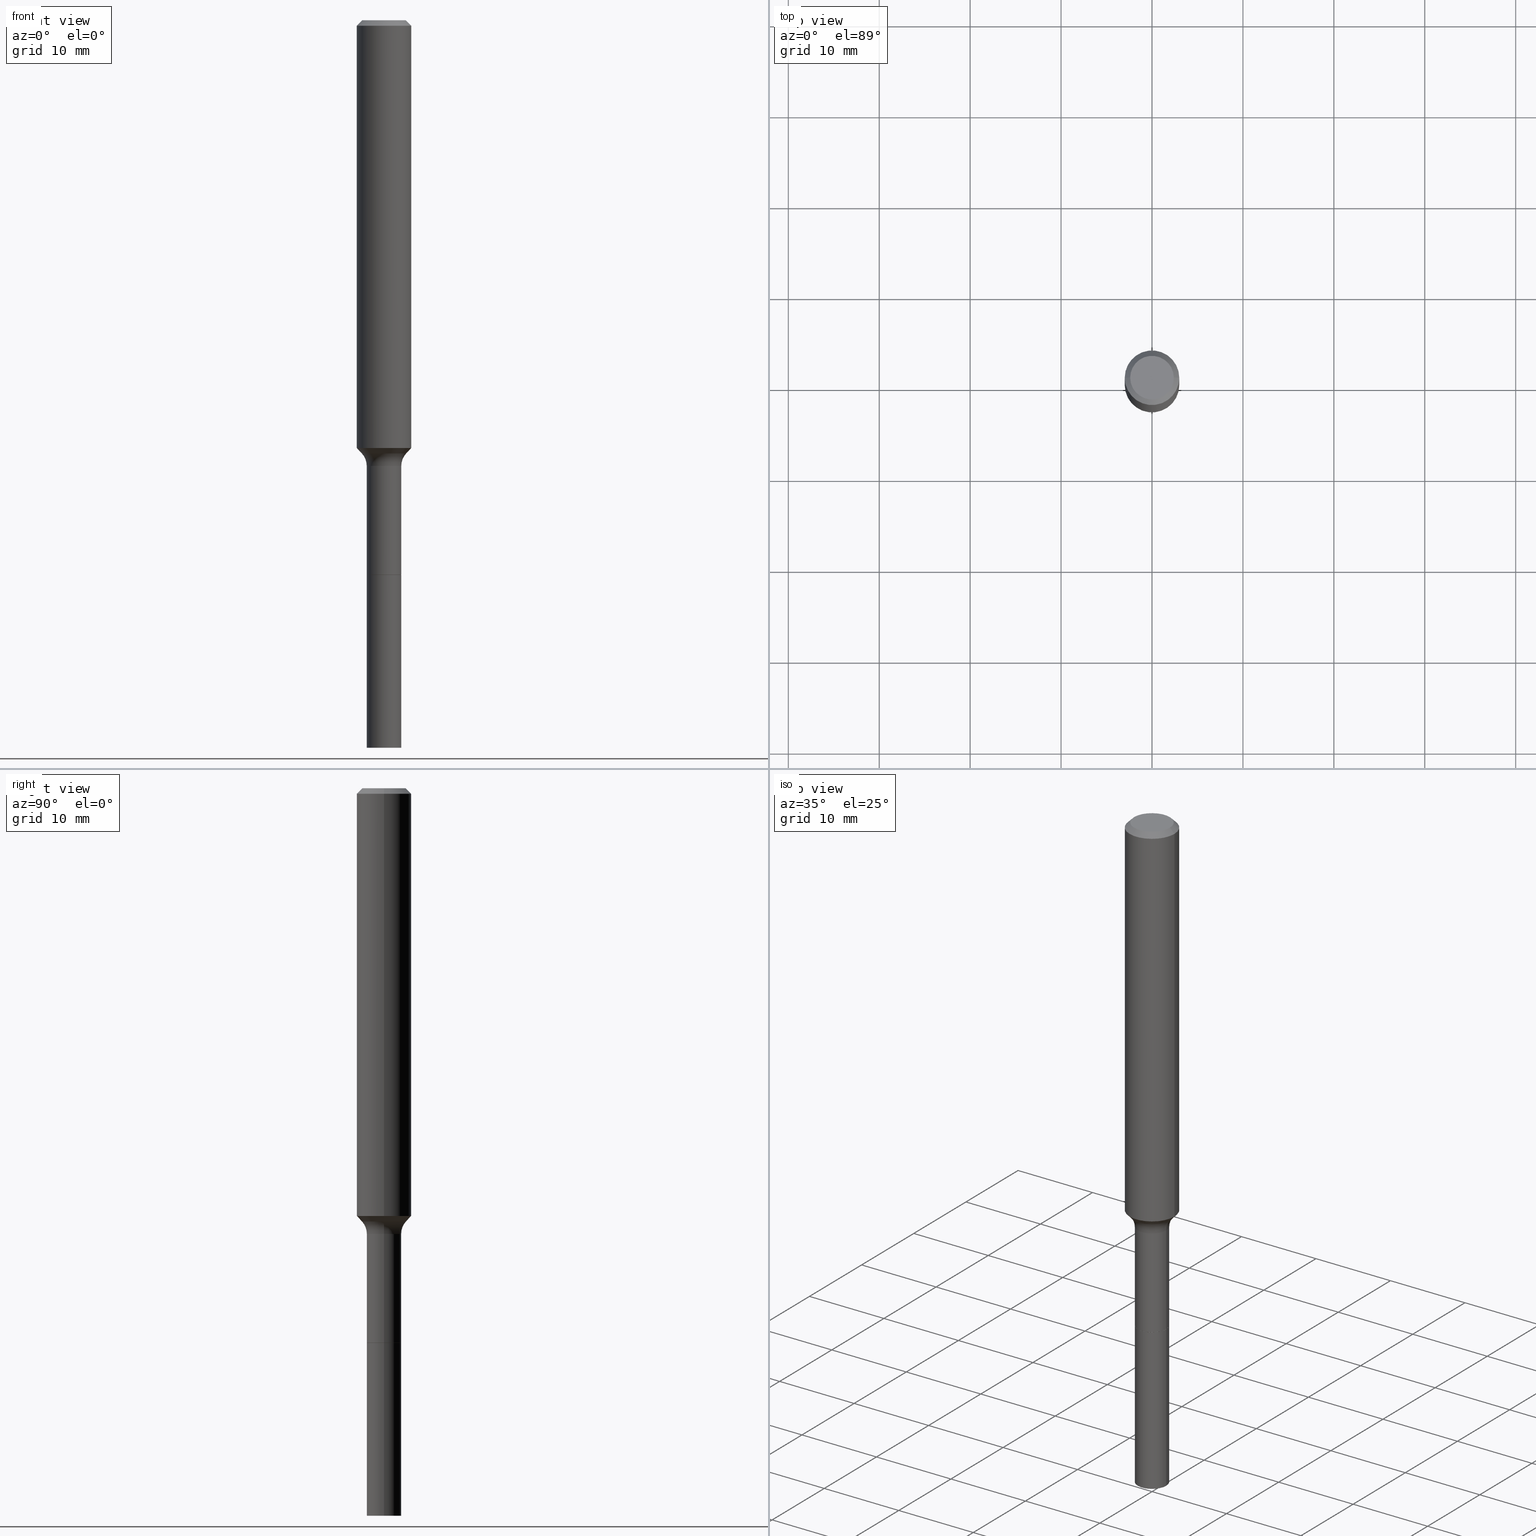
[diagram: canonical four-view strip — front | top / right | iso, engineering-drawing reading convention]
A machine part, canonical four-view strip (front | top / right | iso — engineering-drawing reading convention). The complete STEP part file that produces these views, byte-faithful:
ISO-10303-21;
HEADER;
FILE_DESCRIPTION (( 'STEP AP203' ),
    '1' );
FILE_NAME ('67824.STEP',
    '2025-04-01T15:31:08',
    ( '' ),
    ( '' ),
    'SwSTEP 2.0',
    'SolidWorks 2024',
    '' );
FILE_SCHEMA (( 'CONFIG_CONTROL_DESIGN' ));
ENDSEC;

DATA;
#1 = ORIENTED_EDGE ( 'NONE', *, *, #106, .F. ) ;
#2 = DIRECTION ( 'NONE',  ( 2.438088387897960049E-29, -3.491481338843145188E-15, -1.000000000000000000 ) ) ;
#3 = EDGE_CURVE ( 'NONE', #36, #151, #460, .T. ) ;
#4 = DIRECTION ( 'NONE',  ( 2.445468806185136597E-29, -3.491481338843145583E-15, -1.000000000000000000 ) ) ;
#5 = EDGE_LOOP ( 'NONE', ( #29, #272, #437, #229 ) ) ;
#6 = DATE_TIME_ROLE ( 'creation_date' ) ;
#7 = DIRECTION ( 'NONE',  ( -2.445468806185136597E-29, 3.491481338843145583E-15, 1.000000000000000000 ) ) ;
#8 = DIRECTION ( 'NONE',  ( 1.000000000000000000, -6.982962677686263555E-15, 0.000000000000000000 ) ) ;
#9 = CARTESIAN_POINT ( 'NONE',  ( -0.09629170387046627477, -5.862473920658119900E-15, -1.875040131195000015 ) ) ;
#10 = ORIENTED_EDGE ( 'NONE', *, *, #269, .F. ) ;
#11 = COORDINATED_UNIVERSAL_TIME_OFFSET ( 5, 0, .BEHIND. ) ;
#12 = TOROIDAL_SURFACE ( 'NONE', #212, 0.1547999999999999376, 0.08000000000000009881 ) ;
#13 = ORIENTED_EDGE ( 'NONE', *, *, #228, .F. ) ;
#14 = CYLINDRICAL_SURFACE ( 'NONE', #122, 0.07480000000000010252 ) ;
#15 = APPROVAL ( #412, 'UNSPECIFIED' ) ;
#16 = PERSON_AND_ORGANIZATION ( #234, #45 ) ;
#17 = ADVANCED_FACE ( 'NONE', ( #321 ), #12, .F. ) ;
#18 = DIRECTION ( 'NONE',  ( -1.000000000000000000, 6.982962677686266711E-15, 0.000000000000000000 ) ) ;
#19 = DATE_AND_TIME ( #291, #144 ) ;
#20 = DIRECTION ( 'NONE',  ( 2.445468806185136597E-29, -3.491481338843145583E-15, -1.000000000000000000 ) ) ;
#21 = APPROVAL_ROLE ( '' ) ;
#22 = AXIS2_PLACEMENT_3D ( 'NONE', #215, #371, #413 ) ;
#23 = AXIS2_PLACEMENT_3D ( 'NONE', #254, #495, #332 ) ;
#24 = CARTESIAN_POINT ( 'NONE',  ( -0.1181000000000001077, 8.391509709326790846E-16, -5.809262341591049389E-30 ) ) ;
#25 = DIRECTION ( 'NONE',  ( 7.105427357601001859E-15, 1.000000000000000000, -3.491481338843145583E-15 ) ) ;
#26 = CONICAL_SURFACE ( 'NONE', #99, 0.09629170387046616375, 0.7504915783575668575 ) ;
#27 = AXIS2_PLACEMENT_3D ( 'NONE', #355, #319, #477 ) ;
#28 = EDGE_CURVE ( 'NONE', #264, #383, #273, .T. ) ;
#29 = ORIENTED_EDGE ( 'NONE', *, *, #126, .T. ) ;
#30 = ORIENTED_EDGE ( 'NONE', *, *, #461, .T. ) ;
#31 = FACE_OUTER_BOUND ( 'NONE', #79, .T. ) ;
#32 = VERTEX_POINT ( 'NONE', #275 ) ;
#33 = CIRCLE ( 'NONE', #55, 0.08000000000000009881 ) ;
#34 = APPROVAL_PERSON_ORGANIZATION ( #258, #15, #172 ) ;
#35 = ADVANCED_FACE ( 'NONE', ( #92 ), #237, .T. ) ;
#36 = VERTEX_POINT ( 'NONE', #248 ) ;
#37 = FACE_OUTER_BOUND ( 'NONE', #194, .T. ) ;
#38 = CARTESIAN_POINT ( 'NONE',  ( 5.871815150531132668E-29, -8.383395842696276548E-15, -2.401100000000000456 ) ) ;
#39 = ORIENTED_EDGE ( 'NONE', *, *, #382, .F. ) ;
#40 = CARTESIAN_POINT ( 'NONE',  ( 0.000000000000000000, 0.000000000000000000, 0.000000000000000000 ) ) ;
#41 = ORIENTED_EDGE ( 'NONE', *, *, #103, .T. ) ;
#42 = CARTESIAN_POINT ( 'NONE',  ( -0.07480000000000010252, -7.853655617017142483E-15, -2.401600000000000179 ) ) ;
#43 = AXIS2_PLACEMENT_3D ( 'NONE', #280, #516, #86 ) ;
#44 = DIRECTION ( 'NONE',  ( 1.000000000000000000, -6.982962677686261977E-15, 0.000000000000000000 ) ) ;
#45 = ORGANIZATION ( 'UNSPECIFIED', 'UNSPECIFIED', '' ) ;
#46 = ADVANCED_FACE ( 'NONE', ( #48 ), #211, .F. ) ;
#47 = VERTEX_POINT ( 'NONE', #91 ) ;
#48 = FACE_OUTER_BOUND ( 'NONE', #286, .T. ) ;
#49 =( NAMED_UNIT ( * ) PLANE_ANGLE_UNIT ( ) SI_UNIT ( $, .RADIAN. ) );
#50 = CARTESIAN_POINT ( 'NONE',  ( 5.776197320209328408E-31, -8.246878922347560526E-17, -0.02362000000000014435 ) ) ;
#51 = DIRECTION ( 'NONE',  ( 0.7071067811866199593, -2.468850131083015945E-15, 0.7071067811864750752 ) ) ;
#52 = ORIENTED_EDGE ( 'NONE', *, *, #126, .F. ) ;
#53 = EDGE_CURVE ( 'NONE', #178, #160, #219, .T. ) ;
#54 = DIRECTION ( 'NONE',  ( 2.438088387897960049E-29, -3.491481338843145188E-15, -1.000000000000000000 ) ) ;
#55 = AXIS2_PLACEMENT_3D ( 'NONE', #213, #25, #367 ) ;
#56 = EDGE_CURVE ( 'NONE', #160, #383, #249, .T. ) ;
#57 = DIRECTION ( 'NONE',  ( -2.445468806185136597E-29, 3.491481338843145583E-15, 1.000000000000000000 ) ) ;
#58 = LINE ( 'NONE', #108, #305 ) ;
#59 = CARTESIAN_POINT ( 'NONE',  ( 5.776197320209328408E-31, -8.246878922347560526E-17, -0.02362000000000014435 ) ) ;
#60 = VECTOR ( 'NONE', #297, 39.37007874015748143 ) ;
#61 = CIRCLE ( 'NONE', #27, 0.09629170387046616375 ) ;
#62 = CARTESIAN_POINT ( 'NONE',  ( 5.873037884934224349E-29, -8.385141583365698841E-15, -2.401600000000000179 ) ) ;
#63 = PERSON_AND_ORGANIZATION ( #234, #45 ) ;
#64 = ADVANCED_FACE ( 'NONE', ( #517 ), #78, .F. ) ;
#65 = ORIENTED_EDGE ( 'NONE', *, *, #84, .T. ) ;
#66 = AXIS2_PLACEMENT_3D ( 'NONE', #493, #368, #359 ) ;
#67 = ORIENTED_EDGE ( 'NONE', *, *, #106, .T. ) ;
#68 = CC_DESIGN_DATE_AND_TIME_ASSIGNMENT ( #19, #6, ( #201 ) ) ;
#69 = EDGE_LOOP ( 'NONE', ( #30, #233, #52, #202 ) ) ;
#70 = LINE ( 'NONE', #214, #502 ) ;
#71 = EDGE_CURVE ( 'NONE', #32, #168, #134, .T. ) ;
#72 = FACE_OUTER_BOUND ( 'NONE', #253, .T. ) ;
#73 = ORIENTED_EDGE ( 'NONE', *, *, #376, .F. ) ;
#74 = AXIS2_PLACEMENT_3D ( 'NONE', #333, #54, #223 ) ;
#75 = DIRECTION ( 'NONE',  ( 1.000000000000000000, -6.982962677686266711E-15, 4.876176775795935793E-29 ) ) ;
#76 = VERTEX_POINT ( 'NONE', #236 ) ;
#77 = DIRECTION ( 'NONE',  ( 1.000000000000000000, -6.982962677686268288E-15, 0.000000000000000000 ) ) ;
#78 = PLANE ( 'NONE',  #143 ) ;
#79 = EDGE_LOOP ( 'NONE', ( #506, #198, #278, #39 ) ) ;
#80 = DIRECTION ( 'NONE',  ( 1.000000000000000000, -6.982962677686266711E-15, 4.876176775795935793E-29 ) ) ;
#81 = CARTESIAN_POINT ( 'NONE',  ( 0.1181000000000002187, -7.289701871487256587E-15, -1.851653596806735580 ) ) ;
#82 = CARTESIAN_POINT ( 'NONE',  ( 5.873037884934224349E-29, -8.385141583365698841E-15, -2.401600000000000179 ) ) ;
#83 = VERTEX_POINT ( 'NONE', #393 ) ;
#84 = EDGE_CURVE ( 'NONE', #32, #178, #246, .T. ) ;
#85 = AXIS2_PLACEMENT_3D ( 'NONE', #141, #293, #331 ) ;
#86 = DIRECTION ( 'NONE',  ( 1.000000000000000000, -6.982962677686268288E-15, 0.000000000000000000 ) ) ;
#87 = VECTOR ( 'NONE', #343, 39.37007874015748143 ) ;
#88 = VERTEX_POINT ( 'NONE', #9 ) ;
#89 = ADVANCED_FACE ( 'NONE', ( #400 ), #430, .T. ) ;
#90 = DIRECTION ( 'NONE',  ( -2.445468806185136877E-29, 3.491481338843145188E-15, 1.000000000000000000 ) ) ;
#91 = CARTESIAN_POINT ( 'NONE',  ( -0.1180999999999999966, -2.434590413305311722E-15, -0.02362000000000014435 ) ) ;
#92 = FACE_OUTER_BOUND ( 'NONE', #473, .T. ) ;
#93 = CC_DESIGN_PERSON_AND_ORGANIZATION_ASSIGNMENT ( #16, #370, ( #201 ) ) ;
#94 = PERSON_AND_ORGANIZATION_ROLE ( 'creator' ) ;
#95 = DIRECTION ( 'NONE',  ( -0.7071067811866199593, 7.493145998870616062E-15, 0.7071067811864750752 ) ) ;
#96 = DIRECTION ( 'NONE',  ( -2.445468806185136597E-29, 3.491481338843145583E-15, 1.000000000000000000 ) ) ;
#97 = APPROVAL_DATE_TIME ( #179, #112 ) ;
#98 = DIRECTION ( 'NONE',  ( -2.445468806185136597E-29, 3.491481338843145583E-15, 1.000000000000000000 ) ) ;
#99 = AXIS2_PLACEMENT_3D ( 'NONE', #294, #57, #410 ) ;
#100 = AXIS2_PLACEMENT_3D ( 'NONE', #50, #353, #159 ) ;
#101 = PERSON_AND_ORGANIZATION ( #234, #45 ) ;
#102 = CARTESIAN_POINT ( 'NONE',  ( 5.873037884934224349E-29, -8.385141583365698841E-15, -2.401600000000000179 ) ) ;
#103 = EDGE_CURVE ( 'NONE', #420, #466, #439, .T. ) ;
#104 = APPROVAL_ROLE ( '' ) ;
#105 = DIRECTION ( 'NONE',  ( -2.445468806185136597E-29, 3.491481338843145583E-15, 1.000000000000000000 ) ) ;
#106 = EDGE_CURVE ( 'NONE', #151, #36, #441, .T. ) ;
#107 = DATE_TIME_ROLE ( 'classification_date' ) ;
#108 = CARTESIAN_POINT ( 'NONE',  ( -0.07430000000000000493, -7.857208330695944170E-15, -2.401600000000000179 ) ) ;
#109 = MANIFOLD_SOLID_BREP ( 'Body-Move/Copy2[2]', #265 ) ;
#110 = VECTOR ( 'NONE', #51, 39.37007874015748143 ) ;
#111 = LOCAL_TIME ( 11, 31, 8.000000000000000000, #132 ) ;
#112 = APPROVAL ( #183, 'UNSPECIFIED' ) ;
#113 = PERSON_AND_ORGANIZATION ( #234, #45 ) ;
#114 = ORIENTED_EDGE ( 'NONE', *, *, #182, .T. ) ;
#115 = ORIENTED_EDGE ( 'NONE', *, *, #389, .T. ) ;
#116 = EDGE_LOOP ( 'NONE', ( #10, #119, #200, #380 ) ) ;
#117 = ADVANCED_FACE ( 'NONE', ( #207 ), #453, .T. ) ;
#118 = APPLICATION_CONTEXT ( 'configuration controlled 3d designs of mechanical parts and assemblies' ) ;
#119 = ORIENTED_EDGE ( 'NONE', *, *, #461, .F. ) ;
#120 = DIRECTION ( 'NONE',  ( -2.445468806185136597E-29, 3.491481338843145583E-15, 1.000000000000000000 ) ) ;
#121 = ORIENTED_EDGE ( 'NONE', *, *, #216, .T. ) ;
#122 = AXIS2_PLACEMENT_3D ( 'NONE', #102, #139, #369 ) ;
#123 = AXIS2_PLACEMENT_3D ( 'NONE', #224, #377, #503 ) ;
#124 = CARTESIAN_POINT ( 'NONE',  ( 0.000000000000000000, 0.000000000000000000, 0.000000000000000000 ) ) ;
#125 = DIRECTION ( 'NONE',  ( 1.000000000000000000, -6.982962677686266711E-15, 0.000000000000000000 ) ) ;
#126 = EDGE_CURVE ( 'NONE', #466, #76, #507, .T. ) ;
#127 = CARTESIAN_POINT ( 'NONE',  ( 7.545787641473140628E-46, -1.077338491108201769E-31, -3.085620075131671975E-17 ) ) ;
#128 = EDGE_LOOP ( 'NONE', ( #354, #158, #364, #114 ) ) ;
#129 = CARTESIAN_POINT ( 'NONE',  ( 0.000000000000000000, 0.000000000000000000, 0.000000000000000000 ) ) ;
#130 = CARTESIAN_POINT ( 'NONE',  ( 5.873037884934224349E-29, -8.385141583365698841E-15, -2.401600000000000179 ) ) ;
#131 = ORIENTED_EDGE ( 'NONE', *, *, #187, .T. ) ;
#132 = COORDINATED_UNIVERSAL_TIME_OFFSET ( 5, 0, .BEHIND. ) ;
#133 = DIRECTION ( 'NONE',  ( 1.000000000000000000, -6.982962677686266711E-15, 0.000000000000000000 ) ) ;
#134 = CIRCLE ( 'NONE', #43, 0.07430000000000000493 ) ;
#135 = ADVANCED_FACE ( 'NONE', ( #173 ), #14, .T. ) ;
#136 = ORIENTED_EDGE ( 'NONE', *, *, #53, .T. ) ;
#137 = PERSON_AND_ORGANIZATION_ROLE ( 'design_supplier' ) ;
#138 = EDGE_CURVE ( 'NONE', #329, #83, #334, .T. ) ;
#139 = DIRECTION ( 'NONE',  ( -2.445468806185136597E-29, 3.491481338843145583E-15, 1.000000000000000000 ) ) ;
#140 = EDGE_LOOP ( 'NONE', ( #481, #387, #41, #204 ) ) ;
#141 = CARTESIAN_POINT ( 'NONE',  ( 7.545787641473140628E-46, -1.077338491108201769E-31, -3.085620075131671975E-17 ) ) ;
#142 = PLANE ( 'NONE',  #74 ) ;
#143 = AXIS2_PLACEMENT_3D ( 'NONE', #130, #167, #390 ) ;
#144 = LOCAL_TIME ( 11, 31, 8.000000000000000000, #11 ) ;
#145 =( NAMED_UNIT ( * ) SI_UNIT ( $, .STERADIAN. ) SOLID_ANGLE_UNIT ( ) );
#146 = CARTESIAN_POINT ( 'NONE',  ( 5.871815150531132668E-29, -8.383395842696276548E-15, -2.401100000000000456 ) ) ;
#147 = LINE ( 'NONE', #24, #60 ) ;
#148 = EDGE_CURVE ( 'NONE', #76, #47, #147, .T. ) ;
#149 = CONICAL_SURFACE ( 'NONE', #261, 0.07430000000000000493, 0.7853981633975507526 ) ;
#150 = COORDINATED_UNIVERSAL_TIME_OFFSET ( 5, 0, .BEHIND. ) ;
#151 = VERTEX_POINT ( 'NONE', #252 ) ;
#152 = CARTESIAN_POINT ( 'NONE',  ( 0.07479999999999997762, -5.223256082909326032E-16, 3.647380228295358762E-30 ) ) ;
#153 = ORIENTED_EDGE ( 'NONE', *, *, #71, .F. ) ;
#154 = ADVANCED_FACE ( 'NONE', ( #499 ), #142, .F. ) ;
#155 = EDGE_LOOP ( 'NONE', ( #136, #195, #381, #434 ) ) ;
#156 = AXIS2_PLACEMENT_3D ( 'NONE', #361, #401, #325 ) ;
#157 = CC_DESIGN_PERSON_AND_ORGANIZATION_ASSIGNMENT ( #113, #218, ( #384 ) ) ;
#158 = ORIENTED_EDGE ( 'NONE', *, *, #138, .F. ) ;
#159 = DIRECTION ( 'NONE',  ( 1.000000000000000000, -6.982962677686266711E-15, 0.000000000000000000 ) ) ;
#160 = VERTEX_POINT ( 'NONE', #375 ) ;
#161 = DIRECTION ( 'NONE',  ( 1.000000000000000000, -6.982962677686266711E-15, 4.876176775795935793E-29 ) ) ;
#162 = DIRECTION ( 'NONE',  ( 1.000000000000000000, -6.982962677686266711E-15, 4.876176775795935793E-29 ) ) ;
#163 = CARTESIAN_POINT ( 'NONE',  ( 4.718776608414840041E-29, -6.737162391431733996E-15, -1.929599999999999982 ) ) ;
#164 = AXIS2_PLACEMENT_3D ( 'NONE', #208, #96, #403 ) ;
#165 = AXIS2_PLACEMENT_3D ( 'NONE', #464, #379, #193 ) ;
#166 = DIRECTION ( 'NONE',  ( 1.000000000000000000, -6.982962677686267499E-15, 0.000000000000000000 ) ) ;
#167 = DIRECTION ( 'NONE',  ( -2.438088387897960049E-29, 3.491481338843145188E-15, 1.000000000000000000 ) ) ;
#168 = VERTEX_POINT ( 'NONE', #402 ) ;
#169 = LINE ( 'NONE', #279, #255 ) ;
#170 = DIRECTION ( 'NONE',  ( -2.445468806185136597E-29, 3.491481338843145583E-15, 1.000000000000000000 ) ) ;
#171 = DIRECTION ( 'NONE',  ( 1.000000000000000000, -6.982962677686267499E-15, 4.883557194083112901E-29 ) ) ;
#172 = APPROVAL_ROLE ( '' ) ;
#173 = FACE_OUTER_BOUND ( 'NONE', #511, .T. ) ;
#174 = CARTESIAN_POINT ( 'NONE',  ( 5.873037884934224349E-29, -8.385141583365698841E-15, -2.401600000000000179 ) ) ;
#175 = APPROVAL_DATE_TIME ( #443, #15 ) ;
#176 = AXIS2_PLACEMENT_3D ( 'NONE', #396, #4, #210 ) ;
#177 = AXIS2_PLACEMENT_3D ( 'NONE', #206, #512, #77 ) ;
#178 = VERTEX_POINT ( 'NONE', #459 ) ;
#179 = DATE_AND_TIME ( #404, #205 ) ;
#180 = CARTESIAN_POINT ( 'NONE',  ( 0.07479999999999994986, -7.259487999722666008E-15, -1.929599999999999982 ) ) ;
#181 = DIRECTION ( 'NONE',  ( 1.000000000000000000, -6.982962677686268288E-15, 0.000000000000000000 ) ) ;
#182 = EDGE_CURVE ( 'NONE', #47, #397, #496, .T. ) ;
#183 = APPROVAL_STATUS ( 'not_yet_approved' ) ;
#184 = FACE_OUTER_BOUND ( 'NONE', #465, .T. ) ;
#185 = CIRCLE ( 'NONE', #221, 0.07480000000000019966 ) ;
#186 = CARTESIAN_POINT ( 'NONE',  ( 7.702248551960706711E-29, -1.099676962482037231E-14, -3.149600000000000399 ) ) ;
#187 = EDGE_CURVE ( 'NONE', #487, #36, #449, .T. ) ;
#188 = CARTESIAN_POINT ( 'NONE',  ( -0.07480000000000019966, -9.159469637744476062E-15, -3.149600000000000399 ) ) ;
#189 = ADVANCED_FACE ( 'NONE', ( #456 ), #508, .T. ) ;
#190 = SHAPE_DEFINITION_REPRESENTATION ( #330, #263 ) ;
#191 = AXIS2_PLACEMENT_3D ( 'NONE', #40, #328, #162 ) ;
#192 = CIRCLE ( 'NONE', #475, 0.07479999999999994986 ) ;
#193 = DIRECTION ( 'NONE',  ( 1.000000000000000000, -6.982962677686267499E-15, 4.883557194083112901E-29 ) ) ;
#194 = EDGE_LOOP ( 'NONE', ( #267, #469 ) ) ;
#195 = ORIENTED_EDGE ( 'NONE', *, *, #56, .T. ) ;
#196 = CC_DESIGN_PERSON_AND_ORGANIZATION_ASSIGNMENT ( #326, #137, ( #497 ) ) ;
#197 = CYLINDRICAL_SURFACE ( 'NONE', #306, 0.07479999999999997762 ) ;
#198 = ORIENTED_EDGE ( 'NONE', *, *, #290, .T. ) ;
#199 = AXIS2_PLACEMENT_3D ( 'NONE', #62, #374, #498 ) ;
#200 = ORIENTED_EDGE ( 'NONE', *, *, #372, .T. ) ;
#201 = PRODUCT_DEFINITION ( 'UNKNOWN', '', #497, #318 ) ;
#202 = ORIENTED_EDGE ( 'NONE', *, *, #103, .F. ) ;
#203 = CARTESIAN_POINT ( 'NONE',  ( 0.09629170387046616375, -7.219069001947629893E-15, -1.875040131195000015 ) ) ;
#204 = ORIENTED_EDGE ( 'NONE', *, *, #444, .F. ) ;
#205 = LOCAL_TIME ( 11, 31, 8.000000000000000000, #409 ) ;
#206 = CARTESIAN_POINT ( 'NONE',  ( 5.873037884934224349E-29, -8.385141583365698841E-15, -2.401600000000000179 ) ) ;
#207 = FACE_OUTER_BOUND ( 'NONE', #128, .T. ) ;
#208 = CARTESIAN_POINT ( 'NONE',  ( 5.873037884934224349E-29, -8.385141583365698841E-15, -2.401600000000000179 ) ) ;
#209 = DIRECTION ( 'NONE',  ( -6.982962677686266711E-15, -1.000000000000000000, 3.491481338843145583E-15 ) ) ;
#210 = DIRECTION ( 'NONE',  ( -1.000000000000000000, 6.982962677686266711E-15, 0.000000000000000000 ) ) ;
#211 = PLANE ( 'NONE',  #156 ) ;
#212 = AXIS2_PLACEMENT_3D ( 'NONE', #163, #358, #171 ) ;
#213 = CARTESIAN_POINT ( 'NONE',  ( -0.1547999999999999376, -5.637242236475099352E-15, -1.929599999999999982 ) ) ;
#214 = CARTESIAN_POINT ( 'NONE',  ( 0.1180999999999999966, -8.926936027602933910E-16, -0.02362000000000014435 ) ) ;
#215 = CARTESIAN_POINT ( 'NONE',  ( 5.776197320209328408E-31, -8.246878922347560526E-17, -0.02362000000000014435 ) ) ;
#216 = EDGE_CURVE ( 'NONE', #307, #487, #185, .T. ) ;
#217 = DIRECTION ( 'NONE',  ( 1.000000000000000000, -6.982962677686256455E-15, 0.000000000000000000 ) ) ;
#218 = PERSON_AND_ORGANIZATION_ROLE ( 'classification_officer' ) ;
#219 = CIRCLE ( 'NONE', #327, 0.07480000000000000537 ) ;
#220 = DIRECTION ( 'NONE',  ( -0.7071067811865460184, 2.468850131082241283E-15, -0.7071067811865490160 ) ) ;
#221 = AXIS2_PLACEMENT_3D ( 'NONE', #186, #105, #217 ) ;
#222 = EDGE_CURVE ( 'NONE', #168, #160, #58, .T. ) ;
#223 = DIRECTION ( 'NONE',  ( -1.000000000000000000, 6.982962677686265922E-15, -4.876176775795935793E-29 ) ) ;
#224 = CARTESIAN_POINT ( 'NONE',  ( 4.585352151182658588E-29, -6.546667627649345936E-15, -1.875040131195000015 ) ) ;
#225 = AXIS2_PLACEMENT_3D ( 'NONE', #295, #98, #256 ) ;
#226 = CONICAL_SURFACE ( 'NONE', #123, 0.09629170387046616375, 0.7504915783575668575 ) ;
#227 = ORIENTED_EDGE ( 'NONE', *, *, #500, .T. ) ;
#228 = EDGE_CURVE ( 'NONE', #329, #47, #340, .T. ) ;
#229 = ORIENTED_EDGE ( 'NONE', *, *, #238, .F. ) ;
#230 = AXIS2_PLACEMENT_3D ( 'NONE', #479, #476, #125 ) ;
#231 =( GEOMETRIC_REPRESENTATION_CONTEXT ( 3 ) GLOBAL_UNCERTAINTY_ASSIGNED_CONTEXT ( ( #312 ) ) GLOBAL_UNIT_ASSIGNED_CONTEXT ( ( #323, #49, #145 ) ) REPRESENTATION_CONTEXT ( 'NONE', 'WORKASPACE' ) );
#232 = FACE_OUTER_BOUND ( 'NONE', #447, .T. ) ;
#233 = ORIENTED_EDGE ( 'NONE', *, *, #411, .T. ) ;
#234 = PERSON ( 'UNSPECIFIED', 'UNSPECIFIED', 'UNSPECIFIED', ('UNSPECIFIED'), ('UNSPECIFIED'), ('UNSPECIFIED') ) ;
#235 = FACE_OUTER_BOUND ( 'NONE', #5, .T. ) ;
#236 = CARTESIAN_POINT ( 'NONE',  ( -0.1181000000000002187, -5.625863008319827761E-15, -1.851653596806735580 ) ) ;
#237 = CYLINDRICAL_SURFACE ( 'NONE', #348, 0.07480000000000010252 ) ;
#238 = EDGE_CURVE ( 'NONE', #466, #397, #407, .T. ) ;
#239 = DIRECTION ( 'NONE',  ( -2.445468806185136597E-29, 3.491481338843145583E-15, 1.000000000000000000 ) ) ;
#240 = DIRECTION ( 'NONE',  ( -2.445468806185136597E-29, 3.491481338843145583E-15, 1.000000000000000000 ) ) ;
#241 = ORIENTED_EDGE ( 'NONE', *, *, #424, .T. ) ;
#242 = ADVANCED_FACE ( 'NONE', ( #417 ), #149, .T. ) ;
#243 = CONICAL_SURFACE ( 'NONE', #199, 0.07430000000000000493, 0.7853981633975507526 ) ;
#244 = CIRCLE ( 'NONE', #488, 0.09447999999999998066 ) ;
#245 = CARTESIAN_POINT ( 'NONE',  ( 0.1180999999999999966, -9.071566814582237199E-16, -0.02362000000000014435 ) ) ;
#246 = LINE ( 'NONE', #314, #110 ) ;
#247 = ADVANCED_FACE ( 'NONE', ( #184 ), #243, .T. ) ;
#248 = CARTESIAN_POINT ( 'NONE',  ( 0.07480000000000000537, -8.907467191656631641E-15, -2.401600000000000179 ) ) ;
#249 = LINE ( 'NONE', #324, #316 ) ;
#250 = EDGE_LOOP ( 'NONE', ( #344, #315, #385, #391 ) ) ;
#251 = DIRECTION ( 'NONE',  ( 0.7071067811865460184, -7.319954787623251312E-15, -0.7071067811865490160 ) ) ;
#252 = CARTESIAN_POINT ( 'NONE',  ( -0.07480000000000000537, -9.159469637744477640E-15, -2.401600000000000179 ) ) ;
#253 = EDGE_LOOP ( 'NONE', ( #470, #514, #289, #450 ) ) ;
#254 = CARTESIAN_POINT ( 'NONE',  ( 4.585352151182658588E-29, -6.546667627649345936E-15, -1.875040131195000015 ) ) ;
#255 = VECTOR ( 'NONE', #435, 39.37007874015748143 ) ;
#256 = DIRECTION ( 'NONE',  ( 1.000000000000000000, -6.982962677686256455E-15, 0.000000000000000000 ) ) ;
#257 = DIRECTION ( 'NONE',  ( -2.445468806185136877E-29, 3.491481338843145188E-15, 1.000000000000000000 ) ) ;
#258 = PERSON_AND_ORGANIZATION ( #234, #45 ) ;
#259 = DIRECTION ( 'NONE',  ( -2.445468806185136597E-29, 3.491481338843145583E-15, 1.000000000000000000 ) ) ;
#260 = APPROVAL_STATUS ( 'not_yet_approved' ) ;
#261 = AXIS2_PLACEMENT_3D ( 'NONE', #491, #259, #181 ) ;
#262 = CARTESIAN_POINT ( 'NONE',  ( 0.1181000000000001077, -8.246878922347488542E-16, 5.758764772215005345E-30 ) ) ;
#263 = ADVANCED_BREP_SHAPE_REPRESENTATION ( '67824', ( #484, #109, #66 ), #231 ) ;
#264 = VERTEX_POINT ( 'NONE', #180 ) ;
#265 = CLOSED_SHELL ( 'NONE', ( #242, #189, #432, #311, #336, #89, #492, #17, #309, #408, #117, #46, #64, #247 ) ) ;
#266 = LOCAL_TIME ( 11, 31, 8.000000000000000000, #303 ) ;
#267 = ORIENTED_EDGE ( 'NONE', *, *, #296, .F. ) ;
#268 = ORIENTED_EDGE ( 'NONE', *, *, #290, .F. ) ;
#269 = EDGE_CURVE ( 'NONE', #88, #383, #33, .T. ) ;
#270 = ORIENTED_EDGE ( 'NONE', *, *, #376, .T. ) ;
#271 = DIRECTION ( 'NONE',  ( -2.445468806185136877E-29, 3.491481338843145188E-15, 1.000000000000000000 ) ) ;
#272 = ORIENTED_EDGE ( 'NONE', *, *, #148, .T. ) ;
#273 = CIRCLE ( 'NONE', #230, 0.07479999999999994986 ) ;
#274 = LINE ( 'NONE', #42, #454 ) ;
#275 = CARTESIAN_POINT ( 'NONE',  ( 0.07430000000000000493, -8.903975710317788634E-15, -2.401600000000000179 ) ) ;
#276 = DIRECTION ( 'NONE',  ( -1.000000000000000000, 6.982962677686265922E-15, -4.876176775795935793E-29 ) ) ;
#277 = DIRECTION ( 'NONE',  ( 1.000000000000000000, -6.982962677686274599E-15, 0.000000000000000000 ) ) ;
#278 = ORIENTED_EDGE ( 'NONE', *, *, #339, .T. ) ;
#279 = CARTESIAN_POINT ( 'NONE',  ( -0.09629170387046616375, -5.862473920658121477E-15, -1.875040131195000015 ) ) ;
#280 = CARTESIAN_POINT ( 'NONE',  ( 5.873037884934224349E-29, -8.385141583365698841E-15, -2.401600000000000179 ) ) ;
#281 = ORIENTED_EDGE ( 'NONE', *, *, #3, .T. ) ;
#282 = CALENDAR_DATE ( 2025, 1, 4 ) ;
#283 = CIRCLE ( 'NONE', #100, 0.1180999999999999966 ) ;
#284 = AXIS2_PLACEMENT_3D ( 'NONE', #388, #2, #276 ) ;
#285 = CARTESIAN_POINT ( 'NONE',  ( -0.07479999999999994986, -7.028793150715450098E-15, -1.929599999999999982 ) ) ;
#286 = EDGE_LOOP ( 'NONE', ( #505, #504 ) ) ;
#287 = SECURITY_CLASSIFICATION_LEVEL ( 'unclassified' ) ;
#288 = DIRECTION ( 'NONE',  ( -2.445468806185136877E-29, 3.491481338843145188E-15, 1.000000000000000000 ) ) ;
#289 = ORIENTED_EDGE ( 'NONE', *, *, #382, .T. ) ;
#290 = EDGE_CURVE ( 'NONE', #160, #178, #415, .T. ) ;
#291 = CALENDAR_DATE ( 2025, 1, 4 ) ;
#292 = CARTESIAN_POINT ( 'NONE',  ( 0.000000000000000000, 0.000000000000000000, 0.000000000000000000 ) ) ;
#293 = DIRECTION ( 'NONE',  ( -2.445468806185136597E-29, 3.491481338843145583E-15, 1.000000000000000000 ) ) ;
#294 = CARTESIAN_POINT ( 'NONE',  ( 4.585352151182658588E-29, -6.546667627649345936E-15, -1.875040131195000015 ) ) ;
#295 = CARTESIAN_POINT ( 'NONE',  ( 7.702248551960706711E-29, -1.099676962482037231E-14, -3.149600000000000399 ) ) ;
#296 = EDGE_CURVE ( 'NONE', #487, #307, #474, .T. ) ;
#297 = DIRECTION ( 'NONE',  ( -2.445468806185136877E-29, 3.491481338843145188E-15, 1.000000000000000000 ) ) ;
#298 = AXIS2_PLACEMENT_3D ( 'NONE', #485, #170, #360 ) ;
#299 = CIRCLE ( 'NONE', #442, 0.1181000000000002187 ) ;
#300 = EDGE_LOOP ( 'NONE', ( #153, #423 ) ) ;
#301 = CC_DESIGN_PERSON_AND_ORGANIZATION_ASSIGNMENT ( #482, #489, ( #490 ) ) ;
#302 = CARTESIAN_POINT ( 'NONE',  ( 0.1547999999999999376, -7.818125013937567660E-15, -1.929599999999999982 ) ) ;
#303 = COORDINATED_UNIVERSAL_TIME_OFFSET ( 5, 0, .BEHIND. ) ;
#304 = EDGE_LOOP ( 'NONE', ( #425, #227, #241, #13 ) ) ;
#305 = VECTOR ( 'NONE', #95, 39.37007874015748143 ) ;
#306 = AXIS2_PLACEMENT_3D ( 'NONE', #292, #7, #80 ) ;
#307 = VERTEX_POINT ( 'NONE', #188 ) ;
#308 = FACE_OUTER_BOUND ( 'NONE', #69, .T. ) ;
#309 = ADVANCED_FACE ( 'NONE', ( #341 ), #26, .T. ) ;
#310 = ORIENTED_EDGE ( 'NONE', *, *, #182, .F. ) ;
#311 = ADVANCED_FACE ( 'NONE', ( #308 ), #226, .T. ) ;
#312 = UNCERTAINTY_MEASURE_WITH_UNIT (LENGTH_MEASURE( 1.000000000000000082E-05 ), #323, 'distance_accuracy_value', 'NONE');
#313 = ORIENTED_EDGE ( 'NONE', *, *, #238, .T. ) ;
#314 = CARTESIAN_POINT ( 'NONE',  ( 0.07430000000000000493, -8.903975710317788634E-15, -2.401600000000000179 ) ) ;
#315 = ORIENTED_EDGE ( 'NONE', *, *, #222, .T. ) ;
#316 = VECTOR ( 'NONE', #271, 39.37007874015748143 ) ;
#317 = CIRCLE ( 'NONE', #406, 0.08000000000000009881 ) ;
#318 = DESIGN_CONTEXT ( 'detailed design', #436, 'design' ) ;
#319 = DIRECTION ( 'NONE',  ( -2.445468806185136597E-29, 3.491481338843145583E-15, 1.000000000000000000 ) ) ;
#320 = DIRECTION ( 'NONE',  ( 0.6819983600625022513, -2.208861293262514063E-15, 0.7313537016191670181 ) ) ;
#321 = FACE_OUTER_BOUND ( 'NONE', #116, .T. ) ;
#322 = DIRECTION ( 'NONE',  ( -2.445468806185136597E-29, 3.491481338843145583E-15, 1.000000000000000000 ) ) ;
#323 =( CONVERSION_BASED_UNIT ( 'INCH', #448 ) LENGTH_UNIT ( ) NAMED_UNIT ( #363 ) );
#324 = CARTESIAN_POINT ( 'NONE',  ( -0.07479999999999997762, 5.314859663485547800E-16, -3.679363447510668680E-30 ) ) ;
#325 = DIRECTION ( 'NONE',  ( -1.000000000000000000, 6.982962677686265922E-15, -4.876176775795935793E-29 ) ) ;
#326 = PERSON_AND_ORGANIZATION ( #234, #45 ) ;
#327 = AXIS2_PLACEMENT_3D ( 'NONE', #38, #240, #277 ) ;
#328 = DIRECTION ( 'NONE',  ( -2.445468806185136597E-29, 3.491481338843145583E-15, 1.000000000000000000 ) ) ;
#329 = VERTEX_POINT ( 'NONE', #426 ) ;
#330 = PRODUCT_DEFINITION_SHAPE ( 'NONE', 'NONE',  #201 ) ;
#331 = DIRECTION ( 'NONE',  ( 1.000000000000000000, -6.982962677686267499E-15, 4.875432709231658792E-29 ) ) ;
#332 = DIRECTION ( 'NONE',  ( 1.000000000000000000, -6.982962677686265922E-15, 0.000000000000000000 ) ) ;
#333 = CARTESIAN_POINT ( 'NONE',  ( 5.873037884934224349E-29, -8.385141583365698841E-15, -2.401600000000000179 ) ) ;
#334 = CIRCLE ( 'NONE', #85, 0.09447999999999998066 ) ;
#335 = CC_DESIGN_APPROVAL ( #455, ( #384 ) ) ;
#336 = ADVANCED_FACE ( 'NONE', ( #72 ), #378, .F. ) ;
#337 = CARTESIAN_POINT ( 'NONE',  ( -0.1180999999999999966, 7.422191030112725094E-16, -0.02362000000000014435 ) ) ;
#338 = DATE_AND_TIME ( #414, #349 ) ;
#339 = EDGE_CURVE ( 'NONE', #178, #264, #345, .T. ) ;
#340 = LINE ( 'NONE', #337, #467 ) ;
#341 = FACE_OUTER_BOUND ( 'NONE', #140, .T. ) ;
#342 = AXIS2_PLACEMENT_3D ( 'NONE', #146, #451, #494 ) ;
#343 = DIRECTION ( 'NONE',  ( -2.445468806185136877E-29, 3.491481338843145188E-15, 1.000000000000000000 ) ) ;
#344 = ORIENTED_EDGE ( 'NONE', *, *, #71, .T. ) ;
#345 = LINE ( 'NONE', #152, #87 ) ;
#346 = ORIENTED_EDGE ( 'NONE', *, *, #296, .T. ) ;
#347 = ORIENTED_EDGE ( 'NONE', *, *, #444, .T. ) ;
#348 = AXIS2_PLACEMENT_3D ( 'NONE', #174, #322, #440 ) ;
#349 = LOCAL_TIME ( 11, 31, 8.000000000000000000, #150 ) ;
#350 = ORIENTED_EDGE ( 'NONE', *, *, #222, .F. ) ;
#351 = DIRECTION ( 'NONE',  ( -2.445468806185136597E-29, 3.491481338843145583E-15, 1.000000000000000000 ) ) ;
#352 = ORIENTED_EDGE ( 'NONE', *, *, #148, .F. ) ;
#353 = DIRECTION ( 'NONE',  ( -2.445468806185136597E-29, 3.491481338843145583E-15, 1.000000000000000000 ) ) ;
#354 = ORIENTED_EDGE ( 'NONE', *, *, #500, .F. ) ;
#355 = CARTESIAN_POINT ( 'NONE',  ( 4.585352151182658588E-29, -6.546667627649345936E-15, -1.875040131195000015 ) ) ;
#356 = CLOSED_SHELL ( 'NONE', ( #35, #446, #135, #154 ) ) ;
#357 = CC_DESIGN_APPROVAL ( #112, ( #201 ) ) ;
#358 = DIRECTION ( 'NONE',  ( -2.445468806185136597E-29, 3.491481338843145583E-15, 1.000000000000000000 ) ) ;
#359 = DIRECTION ( 'NONE',  ( 1.000000000000000000, 0.000000000000000000, 0.000000000000000000 ) ) ;
#360 = DIRECTION ( 'NONE',  ( 1.000000000000000000, -6.982962677686267499E-15, 0.000000000000000000 ) ) ;
#361 = CARTESIAN_POINT ( 'NONE',  ( 3.772893820736570314E-46, -5.386692455541008845E-32, -1.542810037565835988E-17 ) ) ;
#362 = MECHANICAL_CONTEXT ( 'NONE', #118, 'mechanical' ) ;
#363 = DIMENSIONAL_EXPONENTS ( 1.000000000000000000, 0.000000000000000000, 0.000000000000000000, 0.000000000000000000, 0.000000000000000000, 0.000000000000000000, 0.000000000000000000 ) ;
#364 = ORIENTED_EDGE ( 'NONE', *, *, #228, .T. ) ;
#365 = PERSON_AND_ORGANIZATION ( #234, #45 ) ;
#366 = VECTOR ( 'NONE', #288, 39.37007874015748143 ) ;
#367 = DIRECTION ( 'NONE',  ( -1.000000000000000000, 7.105427357601001859E-15, 0.000000000000000000 ) ) ;
#368 = DIRECTION ( 'NONE',  ( 0.000000000000000000, 0.000000000000000000, 1.000000000000000000 ) ) ;
#369 = DIRECTION ( 'NONE',  ( 1.000000000000000000, -6.982962677686278543E-15, 0.000000000000000000 ) ) ;
#370 = PERSON_AND_ORGANIZATION_ROLE ( 'creator' ) ;
#371 = DIRECTION ( 'NONE',  ( -2.445468806185136597E-29, 3.491481338843145583E-15, 1.000000000000000000 ) ) ;
#372 = EDGE_CURVE ( 'NONE', #420, #264, #317, .T. ) ;
#373 = CC_DESIGN_APPROVAL ( #15, ( #497 ) ) ;
#374 = DIRECTION ( 'NONE',  ( -2.445468806185136597E-29, 3.491481338843145583E-15, 1.000000000000000000 ) ) ;
#375 = CARTESIAN_POINT ( 'NONE',  ( -0.07480000000000000537, -7.028793150715450098E-15, -2.401100000000000456 ) ) ;
#376 = EDGE_CURVE ( 'NONE', #307, #151, #274, .T. ) ;
#377 = DIRECTION ( 'NONE',  ( -2.445468806185136597E-29, 3.491481338843145583E-15, 1.000000000000000000 ) ) ;
#378 = TOROIDAL_SURFACE ( 'NONE', #165, 0.1547999999999999376, 0.08000000000000009881 ) ;
#379 = DIRECTION ( 'NONE',  ( -2.445468806185136597E-29, 3.491481338843145583E-15, 1.000000000000000000 ) ) ;
#380 = ORIENTED_EDGE ( 'NONE', *, *, #28, .T. ) ;
#381 = ORIENTED_EDGE ( 'NONE', *, *, #28, .F. ) ;
#382 = EDGE_CURVE ( 'NONE', #383, #264, #192, .T. ) ;
#383 = VERTEX_POINT ( 'NONE', #285 ) ;
#384 = SECURITY_CLASSIFICATION ( '', '', #287 ) ;
#385 = ORIENTED_EDGE ( 'NONE', *, *, #53, .F. ) ;
#386 = DIRECTION ( 'NONE',  ( -2.445468806185136597E-29, 3.491481338843145583E-15, 1.000000000000000000 ) ) ;
#387 = ORIENTED_EDGE ( 'NONE', *, *, #509, .T. ) ;
#388 = CARTESIAN_POINT ( 'NONE',  ( 7.702248551960706711E-29, -1.099676962482037231E-14, -3.149600000000000399 ) ) ;
#389 = EDGE_CURVE ( 'NONE', #168, #32, #422, .T. ) ;
#390 = DIRECTION ( 'NONE',  ( 1.000000000000000000, -6.982962677686265922E-15, 4.876176775795935793E-29 ) ) ;
#391 = ORIENTED_EDGE ( 'NONE', *, *, #84, .F. ) ;
#392 = CARTESIAN_POINT ( 'NONE',  ( 0.07480000000000019966, -1.151909523311130511E-14, -3.149600000000000399 ) ) ;
#393 = CARTESIAN_POINT ( 'NONE',  ( 0.09447999999999998066, -7.704367267948738690E-16, -3.085620075131172158E-17 ) ) ;
#394 = EDGE_LOOP ( 'NONE', ( #281, #67 ) ) ;
#395 = CC_DESIGN_SECURITY_CLASSIFICATION ( #384, ( #497 ) ) ;
#396 = CARTESIAN_POINT ( 'NONE',  ( 5.776197320209328408E-31, -8.246878922347560526E-17, -0.02362000000000014435 ) ) ;
#397 = VERTEX_POINT ( 'NONE', #245 ) ;
#398 =( LENGTH_UNIT ( ) NAMED_UNIT ( * ) SI_UNIT ( $, .METRE. ) );
#399 = CARTESIAN_POINT ( 'NONE',  ( 0.09629170387046627477, -7.219069001947628315E-15, -1.875040131195000015 ) ) ;
#400 = FACE_OUTER_BOUND ( 'NONE', #155, .T. ) ;
#401 = DIRECTION ( 'NONE',  ( 2.438088387897960049E-29, -3.491481338843145188E-15, -1.000000000000000000 ) ) ;
#402 = CARTESIAN_POINT ( 'NONE',  ( -0.07430000000000000493, -7.854559103521833758E-15, -2.401600000000000179 ) ) ;
#403 = DIRECTION ( 'NONE',  ( 1.000000000000000000, -6.982962677686261977E-15, 0.000000000000000000 ) ) ;
#404 = CALENDAR_DATE ( 2025, 1, 4 ) ;
#405 = VECTOR ( 'NONE', #257, 39.37007874015748143 ) ;
#406 = AXIS2_PLACEMENT_3D ( 'NONE', #302, #209, #8 ) ;
#407 = LINE ( 'NONE', #262, #405 ) ;
#408 = ADVANCED_FACE ( 'NONE', ( #232 ), #438, .T. ) ;
#409 = COORDINATED_UNIVERSAL_TIME_OFFSET ( 5, 0, .BEHIND. ) ;
#410 = DIRECTION ( 'NONE',  ( 1.000000000000000000, -6.982962677686265922E-15, 0.000000000000000000 ) ) ;
#411 = EDGE_CURVE ( 'NONE', #88, #76, #169, .T. ) ;
#412 = APPROVAL_STATUS ( 'not_yet_approved' ) ;
#413 = DIRECTION ( 'NONE',  ( 1.000000000000000000, -6.982962677686266711E-15, 0.000000000000000000 ) ) ;
#414 = CALENDAR_DATE ( 2025, 1, 4 ) ;
#415 = CIRCLE ( 'NONE', #342, 0.07480000000000000537 ) ;
#416 = APPROVAL_PERSON_ORGANIZATION ( #101, #112, #104 ) ;
#417 = FACE_OUTER_BOUND ( 'NONE', #250, .T. ) ;
#418 = DATE_AND_TIME ( #463, #266 ) ;
#419 = PRODUCT_RELATED_PRODUCT_CATEGORY ( 'detail', '', ( #490 ) ) ;
#420 = VERTEX_POINT ( 'NONE', #399 ) ;
#421 = VECTOR ( 'NONE', #320, 39.37007874015748143 ) ;
#422 = CIRCLE ( 'NONE', #177, 0.07430000000000000493 ) ;
#423 = ORIENTED_EDGE ( 'NONE', *, *, #389, .F. ) ;
#424 = EDGE_CURVE ( 'NONE', #397, #47, #283, .T. ) ;
#425 = ORIENTED_EDGE ( 'NONE', *, *, #472, .F. ) ;
#426 = CARTESIAN_POINT ( 'NONE',  ( -0.09447999999999998066, 7.009847083995354710E-16, -3.085620075132147757E-17 ) ) ;
#427 = ORIENTED_EDGE ( 'NONE', *, *, #187, .F. ) ;
#428 = CARTESIAN_POINT ( 'NONE',  ( 4.528161110851381444E-29, -6.465013979252506747E-15, -1.851653596806735580 ) ) ;
#429 = AXIS2_PLACEMENT_3D ( 'NONE', #82, #478, #44 ) ;
#430 = CYLINDRICAL_SURFACE ( 'NONE', #191, 0.07479999999999997762 ) ;
#431 = ORIENTED_EDGE ( 'NONE', *, *, #3, .F. ) ;
#432 = ADVANCED_FACE ( 'NONE', ( #235 ), #471, .T. ) ;
#433 = CC_DESIGN_PERSON_AND_ORGANIZATION_ASSIGNMENT ( #365, #94, ( #497 ) ) ;
#434 = ORIENTED_EDGE ( 'NONE', *, *, #339, .F. ) ;
#435 = DIRECTION ( 'NONE',  ( -0.6819983600625022513, 7.399397606724300776E-15, 0.7313537016191670181 ) ) ;
#436 = APPLICATION_CONTEXT ( 'configuration controlled 3d designs of mechanical parts and assemblies' ) ;
#437 = ORIENTED_EDGE ( 'NONE', *, *, #424, .F. ) ;
#438 = CYLINDRICAL_SURFACE ( 'NONE', #468, 0.1181000000000001077 ) ;
#439 = LINE ( 'NONE', #203, #421 ) ;
#440 = DIRECTION ( 'NONE',  ( 1.000000000000000000, -6.982962677686278543E-15, 0.000000000000000000 ) ) ;
#441 = CIRCLE ( 'NONE', #429, 0.07480000000000000537 ) ;
#442 = AXIS2_PLACEMENT_3D ( 'NONE', #428, #386, #166 ) ;
#443 = DATE_AND_TIME ( #282, #111 ) ;
#444 = EDGE_CURVE ( 'NONE', #76, #466, #299, .T. ) ;
#445 = DIRECTION ( 'NONE',  ( -2.445468806185136597E-29, 3.491481338843145583E-15, 1.000000000000000000 ) ) ;
#446 = ADVANCED_FACE ( 'NONE', ( #37 ), #515, .T. ) ;
#447 = EDGE_LOOP ( 'NONE', ( #352, #347, #313, #310 ) ) ;
#448 = LENGTH_MEASURE_WITH_UNIT ( LENGTH_MEASURE( 0.02539999999999999897 ), #398 );
#449 = LINE ( 'NONE', #458, #366 ) ;
#450 = ORIENTED_EDGE ( 'NONE', *, *, #372, .F. ) ;
#451 = DIRECTION ( 'NONE',  ( -2.445468806185136597E-29, 3.491481338843145583E-15, 1.000000000000000000 ) ) ;
#452 = APPLICATION_PROTOCOL_DEFINITION ( 'international standard', 'config_control_design', 1994, #436 ) ;
#453 = CONICAL_SURFACE ( 'NONE', #176, 0.1180999999999999966, 0.7853981633974461696 ) ;
#454 = VECTOR ( 'NONE', #90, 39.37007874015748143 ) ;
#455 = APPROVAL ( #260, 'UNSPECIFIED' ) ;
#456 = FACE_OUTER_BOUND ( 'NONE', #304, .T. ) ;
#457 = APPLICATION_PROTOCOL_DEFINITION ( 'international standard', 'config_control_design', 1994, #118 ) ;
#458 = CARTESIAN_POINT ( 'NONE',  ( 0.07480000000000010252, -8.907467191656633219E-15, -2.401600000000000179 ) ) ;
#459 = CARTESIAN_POINT ( 'NONE',  ( 0.07480000000000000537, -8.905721450987210927E-15, -2.401100000000000456 ) ) ;
#460 = CIRCLE ( 'NONE', #164, 0.07480000000000000537 ) ;
#461 = EDGE_CURVE ( 'NONE', #420, #88, #61, .T. ) ;
#462 = AXIS2_PLACEMENT_3D ( 'NONE', #124, #120, #161 ) ;
#463 = CALENDAR_DATE ( 2025, 1, 4 ) ;
#464 = CARTESIAN_POINT ( 'NONE',  ( 4.718776608414840041E-29, -6.737162391431733996E-15, -1.929599999999999982 ) ) ;
#465 = EDGE_LOOP ( 'NONE', ( #350, #115, #65, #268 ) ) ;
#466 = VERTEX_POINT ( 'NONE', #81 ) ;
#467 = VECTOR ( 'NONE', #220, 39.37007874015748143 ) ;
#468 = AXIS2_PLACEMENT_3D ( 'NONE', #129, #445, #75 ) ;
#469 = ORIENTED_EDGE ( 'NONE', *, *, #216, .F. ) ;
#470 = ORIENTED_EDGE ( 'NONE', *, *, #509, .F. ) ;
#471 = CYLINDRICAL_SURFACE ( 'NONE', #462, 0.1181000000000001077 ) ;
#472 = EDGE_CURVE ( 'NONE', #83, #329, #244, .T. ) ;
#473 = EDGE_LOOP ( 'NONE', ( #346, #270, #431, #427 ) ) ;
#474 = CIRCLE ( 'NONE', #225, 0.07480000000000019966 ) ;
#475 = AXIS2_PLACEMENT_3D ( 'NONE', #483, #351, #133 ) ;
#476 = DIRECTION ( 'NONE',  ( -2.445468806185136597E-29, 3.491481338843145583E-15, 1.000000000000000000 ) ) ;
#477 = DIRECTION ( 'NONE',  ( 1.000000000000000000, -6.982962677686265922E-15, 0.000000000000000000 ) ) ;
#478 = DIRECTION ( 'NONE',  ( -2.445468806185136597E-29, 3.491481338843145583E-15, 1.000000000000000000 ) ) ;
#479 = CARTESIAN_POINT ( 'NONE',  ( 4.718776608414840041E-29, -6.737162391431733996E-15, -1.929599999999999982 ) ) ;
#480 = DIRECTION ( 'NONE',  ( 1.000000000000000000, -6.982962677686267499E-15, 4.875432709231658792E-29 ) ) ;
#481 = ORIENTED_EDGE ( 'NONE', *, *, #411, .F. ) ;
#482 = PERSON_AND_ORGANIZATION ( #234, #45 ) ;
#483 = CARTESIAN_POINT ( 'NONE',  ( 4.718776608414840041E-29, -6.737162391431733996E-15, -1.929599999999999982 ) ) ;
#484 = MANIFOLD_SOLID_BREP ( 'Body-Move/Copy2[1]', #356 ) ;
#485 = CARTESIAN_POINT ( 'NONE',  ( 4.528161110851381444E-29, -6.465013979252506747E-15, -1.851653596806735580 ) ) ;
#486 = AXIS2_PLACEMENT_3D ( 'NONE', #59, #20, #18 ) ;
#487 = VERTEX_POINT ( 'NONE', #392 ) ;
#488 = AXIS2_PLACEMENT_3D ( 'NONE', #127, #239, #480 ) ;
#489 = PERSON_AND_ORGANIZATION_ROLE ( 'design_owner' ) ;
#490 = PRODUCT ( '67824', '67824', '', ( #362 ) ) ;
#491 = CARTESIAN_POINT ( 'NONE',  ( 5.873037884934224349E-29, -8.385141583365698841E-15, -2.401600000000000179 ) ) ;
#492 = ADVANCED_FACE ( 'NONE', ( #31 ), #197, .T. ) ;
#493 = CARTESIAN_POINT ( 'NONE',  ( 0.000000000000000000, 0.000000000000000000, 0.000000000000000000 ) ) ;
#494 = DIRECTION ( 'NONE',  ( 1.000000000000000000, -6.982962677686274599E-15, 0.000000000000000000 ) ) ;
#495 = DIRECTION ( 'NONE',  ( -2.445468806185136597E-29, 3.491481338843145583E-15, 1.000000000000000000 ) ) ;
#496 = CIRCLE ( 'NONE', #22, 0.1180999999999999966 ) ;
#497 = PRODUCT_DEFINITION_FORMATION_WITH_SPECIFIED_SOURCE ( 'ANY', '', #490, .NOT_KNOWN. ) ;
#498 = DIRECTION ( 'NONE',  ( 1.000000000000000000, -6.982962677686268288E-15, 0.000000000000000000 ) ) ;
#499 = FACE_OUTER_BOUND ( 'NONE', #394, .T. ) ;
#500 = EDGE_CURVE ( 'NONE', #83, #397, #70, .T. ) ;
#501 = APPROVAL_DATE_TIME ( #338, #455 ) ;
#502 = VECTOR ( 'NONE', #251, 39.37007874015748143 ) ;
#503 = DIRECTION ( 'NONE',  ( 1.000000000000000000, -6.982962677686265922E-15, 0.000000000000000000 ) ) ;
#504 = ORIENTED_EDGE ( 'NONE', *, *, #472, .T. ) ;
#505 = ORIENTED_EDGE ( 'NONE', *, *, #138, .T. ) ;
#506 = ORIENTED_EDGE ( 'NONE', *, *, #56, .F. ) ;
#507 = CIRCLE ( 'NONE', #298, 0.1181000000000002187 ) ;
#508 = CONICAL_SURFACE ( 'NONE', #486, 0.1180999999999999966, 0.7853981633974461696 ) ;
#509 = EDGE_CURVE ( 'NONE', #88, #420, #518, .T. ) ;
#510 = APPROVAL_PERSON_ORGANIZATION ( #63, #455, #21 ) ;
#511 = EDGE_LOOP ( 'NONE', ( #73, #121, #131, #1 ) ) ;
#512 = DIRECTION ( 'NONE',  ( -2.445468806185136597E-29, 3.491481338843145583E-15, 1.000000000000000000 ) ) ;
#513 = CC_DESIGN_DATE_AND_TIME_ASSIGNMENT ( #418, #107, ( #384 ) ) ;
#514 = ORIENTED_EDGE ( 'NONE', *, *, #269, .T. ) ;
#515 = PLANE ( 'NONE',  #284 ) ;
#516 = DIRECTION ( 'NONE',  ( -2.445468806185136597E-29, 3.491481338843145583E-15, 1.000000000000000000 ) ) ;
#517 = FACE_OUTER_BOUND ( 'NONE', #300, .T. ) ;
#518 = CIRCLE ( 'NONE', #23, 0.09629170387046616375 ) ;
ENDSEC;
END-ISO-10303-21;
